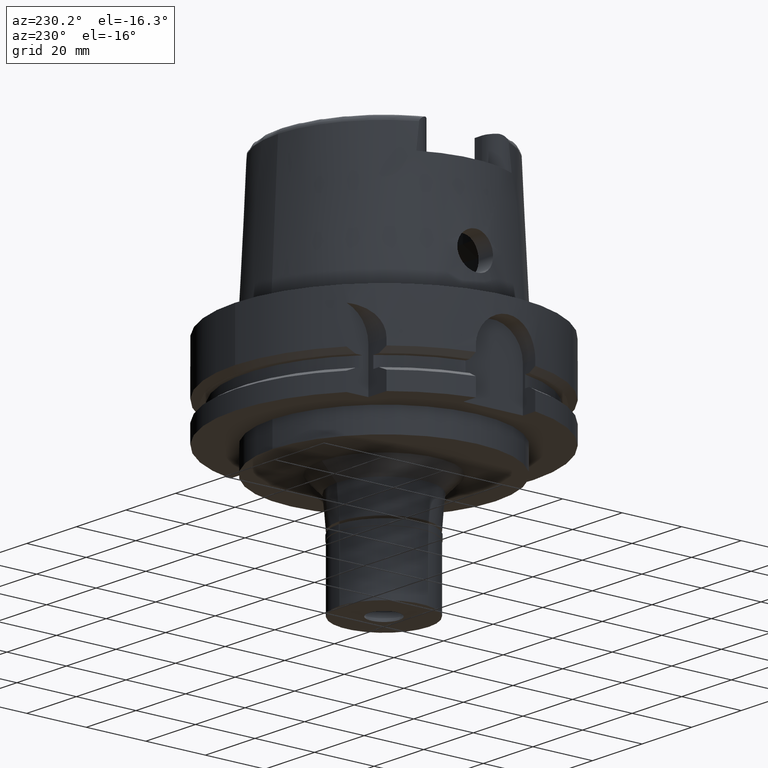
[diagram: clean part render]
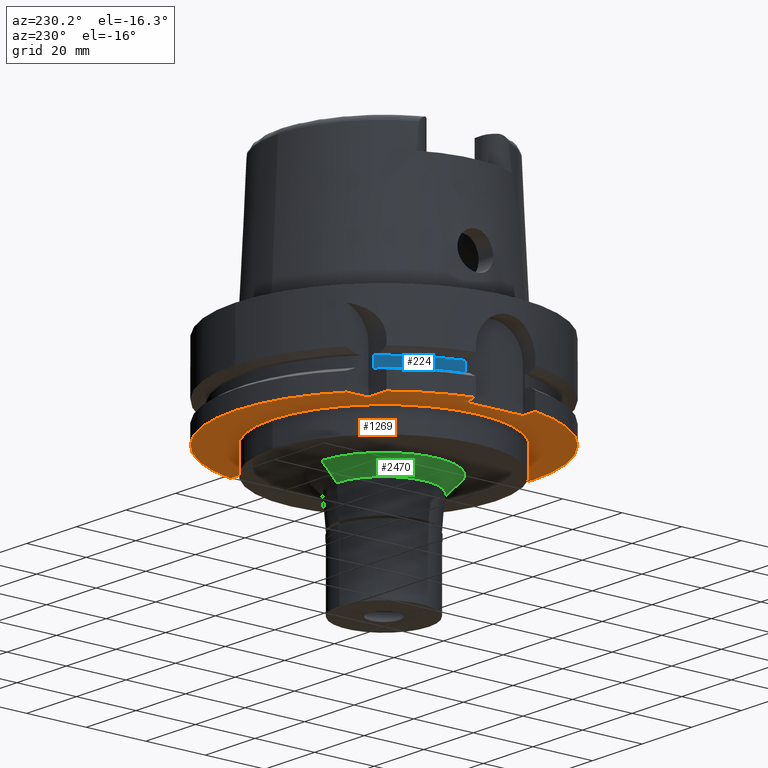
[diagram: same view with three faces highlighted in distinct colors, each labeled with its STEP entity id]
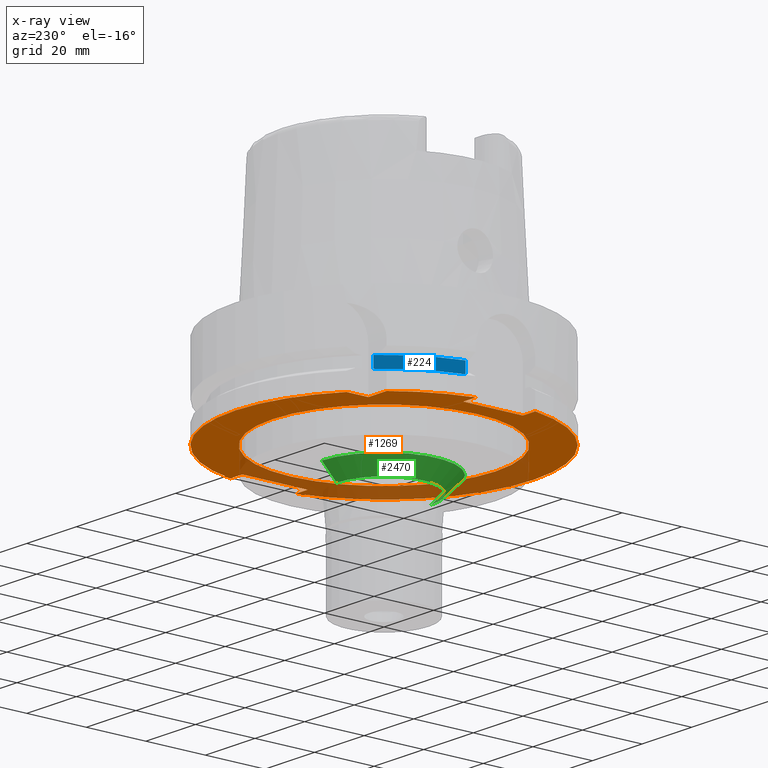
[diagram: x-ray of the same camera — body ghosted, the three highlighted faces saturated]
A machine part, auxiliary view with three faces highlighted in distinct colors.
The next image is the same camera in x-ray (body ghosted, the three faces saturated) — at least one of them is partly hidden behind the body in this view.
Their STEP definitions:

[orange] entity #1269 — the highlighted planar face has unit normal (0, 0, 1).
#46 = CARTESIAN_POINT ( 'NONE',  ( -31.50000000000000000, 31.50000000000000000, -29.00000000000000000 ) ) ;
#86 = DIRECTION ( 'NONE',  ( 0.0000000000000000000, 0.0000000000000000000, 1.000000000000000000 ) ) ;
#93 = VERTEX_POINT ( 'NONE', #2953 ) ;
#208 = EDGE_CURVE ( 'NONE', #449, #647, #3904, .T. ) ;
#222 = VECTOR ( 'NONE', #3586, 1000.000000000000000 ) ;
#276 = EDGE_CURVE ( 'NONE', #1277, #1149, #4397, .T. ) ;
#290 = ORIENTED_EDGE ( 'NONE', *, *, #3431, .F. ) ;
#403 = EDGE_CURVE ( 'NONE', #5310, #5000, #3169, .T. ) ;
#433 = DIRECTION ( 'NONE',  ( -0.7765951326141738997, 0.6299999999999789102, 0.0000000000000000000 ) ) ;
#435 = DIRECTION ( 'NONE',  ( 0.0000000000000000000, 0.0000000000000000000, -1.000000000000000000 ) ) ;
#449 = VERTEX_POINT ( 'NONE', #2807 ) ;
#465 = ORIENTED_EDGE ( 'NONE', *, *, #4031, .T. ) ;
#467 = ORIENTED_EDGE ( 'NONE', *, *, #276, .T. ) ;
#497 = CARTESIAN_POINT ( 'NONE',  ( -44.00000000000000000, 10.00000000000000000, -29.00000000000000000 ) ) ;
#506 = EDGE_CURVE ( 'NONE', #93, #1664, #3277, .T. ) ;
#515 = CARTESIAN_POINT ( 'NONE',  ( 0.0000000000000000000, 0.0000000000000000000, -29.00000000000000000 ) ) ;
#519 = LINE ( 'NONE', #4330, #1846 ) ;
#647 = VERTEX_POINT ( 'NONE', #5493 ) ;
#676 = EDGE_CURVE ( 'NONE', #1664, #93, #4097, .T. ) ;
#807 = VERTEX_POINT ( 'NONE', #2693 ) ;
#845 = DIRECTION ( 'NONE',  ( 0.0000000000000000000, 0.0000000000000000000, 1.000000000000000000 ) ) ;
#882 = EDGE_CURVE ( 'NONE', #449, #2480, #519, .T. ) ;
#966 = PLANE ( 'NONE',  #1858 ) ;
#1149 = VERTEX_POINT ( 'NONE', #2936 ) ;
#1247 = ORIENTED_EDGE ( 'NONE', *, *, #208, .T. ) ;
#1269 = ADVANCED_FACE ( 'NONE', ( #5262, #5290 ), #966, .F. ) ;
#1277 = VERTEX_POINT ( 'NONE', #4871 ) ;
#1326 = EDGE_LOOP ( 'NONE', ( #5205, #290, #2836, #465, #4086, #3780, #4821, #467, #4476, #4953, #1247 ) ) ;
#1468 = EDGE_CURVE ( 'NONE', #5310, #1277, #2871, .T. ) ;
#1525 = CARTESIAN_POINT ( 'NONE',  ( -44.00000000000000000, -10.00000000000000000, -29.00000000000000000 ) ) ;
#1575 = EDGE_LOOP ( 'NONE', ( #3874, #2384 ) ) ;
#1664 = VERTEX_POINT ( 'NONE', #3112 ) ;
#1678 = CARTESIAN_POINT ( 'NONE',  ( -44.00000000000000000, -10.00000000000000000, -29.00000000000000000 ) ) ;
#1716 = CARTESIAN_POINT ( 'NONE',  ( 44.00000000000000000, 11.00000000000000000, -29.00000000000000000 ) ) ;
#1756 = DIRECTION ( 'NONE',  ( 0.0000000000000000000, 0.0000000000000000000, 1.000000000000000000 ) ) ;
#1769 = LINE ( 'NONE', #1716, #3877 ) ;
#1846 = VECTOR ( 'NONE', #2237, 1000.000000000000000 ) ;
#1858 = AXIS2_PLACEMENT_3D ( 'NONE', #1944, #2687, #4351 ) ;
#1897 = LINE ( 'NONE', #3076, #222 ) ;
#1944 = CARTESIAN_POINT ( 'NONE',  ( 0.0000000000000000000, 0.0000000000000000000, -29.00000000000000000 ) ) ;
#2090 = EDGE_CURVE ( 'NONE', #3969, #647, #4293, .T. ) ;
#2152 = DIRECTION ( 'NONE',  ( 0.0000000000000000000, 1.000000000000000000, 0.0000000000000000000 ) ) ;
#2237 = DIRECTION ( 'NONE',  ( -1.000000000000000000, -4.798503851105999980E-14, 0.0000000000000000000 ) ) ;
#2291 = VECTOR ( 'NONE', #2672, 1000.000000000000000 ) ;
#2302 = VECTOR ( 'NONE', #3766, 1000.000000000000000 ) ;
#2384 = ORIENTED_EDGE ( 'NONE', *, *, #676, .F. ) ;
#2432 = CARTESIAN_POINT ( 'NONE',  ( 48.77499359303000404, 11.00000000000000000, -29.00000000000000000 ) ) ;
#2454 = DIRECTION ( 'NONE',  ( 1.000000000000000000, 1.711257052401000108E-14, 0.0000000000000000000 ) ) ;
#2480 = VERTEX_POINT ( 'NONE', #5352 ) ;
#2483 = LINE ( 'NONE', #4257, #3335 ) ;
#2579 = CARTESIAN_POINT ( 'NONE',  ( 0.0000000000000000000, 0.0000000000000000000, -29.00000000000000000 ) ) ;
#2672 = DIRECTION ( 'NONE',  ( 4.798503851105999980E-14, 1.000000000000000000, 0.0000000000000000000 ) ) ;
#2687 = DIRECTION ( 'NONE',  ( 0.0000000000000000000, 0.0000000000000000000, 1.000000000000000000 ) ) ;
#2693 = CARTESIAN_POINT ( 'NONE',  ( 44.00000000000000000, -11.00000000000000000, -29.00000000000000000 ) ) ;
#2763 = AXIS2_PLACEMENT_3D ( 'NONE', #515, #86, #5240 ) ;
#2807 = CARTESIAN_POINT ( 'NONE',  ( -31.50000000000000000, 31.50000000000000000, -29.00000000000000000 ) ) ;
#2836 = ORIENTED_EDGE ( 'NONE', *, *, #4789, .T. ) ;
#2846 = CIRCLE ( 'NONE', #2763, 50.00000000000000000 ) ;
#2871 = LINE ( 'NONE', #1525, #2302 ) ;
#2936 = CARTESIAN_POINT ( 'NONE',  ( -48.98979485565999425, 10.00000000000000000, -29.00000000000000000 ) ) ;
#2953 = CARTESIAN_POINT ( 'NONE',  ( 0.0000000000000000000, 37.50000000000000000, -29.00000000000000000 ) ) ;
#3060 = CARTESIAN_POINT ( 'NONE',  ( 44.00000000000000000, 11.00000000000000000, -29.00000000000000000 ) ) ;
#3076 = CARTESIAN_POINT ( 'NONE',  ( 44.00000000000000000, 11.00000000000000000, -29.00000000000000000 ) ) ;
#3103 = VECTOR ( 'NONE', #4910, 1000.000000000000000 ) ;
#3112 = CARTESIAN_POINT ( 'NONE',  ( 0.0000000000000000000, -37.50000000000000000, -29.00000000000000000 ) ) ;
#3169 = LINE ( 'NONE', #3196, #3103 ) ;
#3196 = CARTESIAN_POINT ( 'NONE',  ( -44.00000000000000000, -10.00000000000000000, -29.00000000000000000 ) ) ;
#3277 = CIRCLE ( 'NONE', #3470, 37.50000000000000000 ) ;
#3335 = VECTOR ( 'NONE', #2454, 1000.000000000000000 ) ;
#3422 = CARTESIAN_POINT ( 'NONE',  ( 0.0000000000000000000, 0.0000000000000000000, -29.00000000000000000 ) ) ;
#3431 = EDGE_CURVE ( 'NONE', #4823, #3969, #1897, .T. ) ;
#3470 = AXIS2_PLACEMENT_3D ( 'NONE', #2579, #435, #2152 ) ;
#3478 = EDGE_CURVE ( 'NONE', #5000, #5024, #2846, .T. ) ;
#3536 = DIRECTION ( 'NONE',  ( -1.000000000000000000, 4.627973610177000155E-14, 0.0000000000000000000 ) ) ;
#3586 = DIRECTION ( 'NONE',  ( 1.000000000000000000, -1.785659532940000023E-14, 0.0000000000000000000 ) ) ;
#3587 = DIRECTION ( 'NONE',  ( 0.0000000000000000000, 1.000000000000000000, 0.0000000000000000000 ) ) ;
#3766 = DIRECTION ( 'NONE',  ( 0.0000000000000000000, 1.000000000000000000, 0.0000000000000000000 ) ) ;
#3780 = ORIENTED_EDGE ( 'NONE', *, *, #403, .F. ) ;
#3813 = DIRECTION ( 'NONE',  ( 0.0000000000000000000, -1.000000000000000000, 0.0000000000000000000 ) ) ;
#3874 = ORIENTED_EDGE ( 'NONE', *, *, #506, .F. ) ;
#3877 = VECTOR ( 'NONE', #4772, 1000.000000000000000 ) ;
#3904 = LINE ( 'NONE', #46, #2291 ) ;
#3969 = VERTEX_POINT ( 'NONE', #2432 ) ;
#4018 = CARTESIAN_POINT ( 'NONE',  ( -48.98979485565999425, -10.00000000000000000, -29.00000000000000000 ) ) ;
#4031 = EDGE_CURVE ( 'NONE', #807, #5024, #2483, .T. ) ;
#4086 = ORIENTED_EDGE ( 'NONE', *, *, #3478, .F. ) ;
#4097 = CIRCLE ( 'NONE', #5010, 37.50000000000000000 ) ;
#4173 = AXIS2_PLACEMENT_3D ( 'NONE', #4726, #845, #433 ) ;
#4257 = CARTESIAN_POINT ( 'NONE',  ( 44.00000000000000000, -11.00000000000000000, -29.00000000000000000 ) ) ;
#4293 = CIRCLE ( 'NONE', #5373, 50.00000000000000000 ) ;
#4330 = CARTESIAN_POINT ( 'NONE',  ( -31.50000000000000000, 31.50000000000000000, -29.00000000000000000 ) ) ;
#4351 = DIRECTION ( 'NONE',  ( 1.000000000000000000, 0.0000000000000000000, 0.0000000000000000000 ) ) ;
#4397 = LINE ( 'NONE', #497, #4922 ) ;
#4458 = CIRCLE ( 'NONE', #4173, 50.00000000000000711 ) ;
#4476 = ORIENTED_EDGE ( 'NONE', *, *, #5412, .F. ) ;
#4590 = CARTESIAN_POINT ( 'NONE',  ( 48.77499359303000404, -11.00000000000000000, -29.00000000000000000 ) ) ;
#4645 = DIRECTION ( 'NONE',  ( 0.0000000000000000000, 0.0000000000000000000, -1.000000000000000000 ) ) ;
#4726 = CARTESIAN_POINT ( 'NONE',  ( 0.0000000000000000000, 0.0000000000000000000, -29.00000000000000000 ) ) ;
#4761 = CARTESIAN_POINT ( 'NONE',  ( 0.0000000000000000000, 0.0000000000000000000, -29.00000000000000000 ) ) ;
#4772 = DIRECTION ( 'NONE',  ( 0.0000000000000000000, -1.000000000000000000, 0.0000000000000000000 ) ) ;
#4789 = EDGE_CURVE ( 'NONE', #4823, #807, #1769, .T. ) ;
#4821 = ORIENTED_EDGE ( 'NONE', *, *, #1468, .T. ) ;
#4823 = VERTEX_POINT ( 'NONE', #3060 ) ;
#4871 = CARTESIAN_POINT ( 'NONE',  ( -44.00000000000000000, 10.00000000000000000, -29.00000000000000000 ) ) ;
#4910 = DIRECTION ( 'NONE',  ( -1.000000000000000000, -4.627973610177000155E-14, 0.0000000000000000000 ) ) ;
#4922 = VECTOR ( 'NONE', #3536, 1000.000000000000000 ) ;
#4953 = ORIENTED_EDGE ( 'NONE', *, *, #882, .F. ) ;
#5000 = VERTEX_POINT ( 'NONE', #4018 ) ;
#5010 = AXIS2_PLACEMENT_3D ( 'NONE', #3422, #4645, #3813 ) ;
#5024 = VERTEX_POINT ( 'NONE', #4590 ) ;
#5205 = ORIENTED_EDGE ( 'NONE', *, *, #2090, .F. ) ;
#5240 = DIRECTION ( 'NONE',  ( 0.0000000000000000000, -1.000000000000000000, 0.0000000000000000000 ) ) ;
#5262 = FACE_OUTER_BOUND ( 'NONE', #1326, .T. ) ;
#5290 = FACE_BOUND ( 'NONE', #1575, .T. ) ;
#5310 = VERTEX_POINT ( 'NONE', #1678 ) ;
#5352 = CARTESIAN_POINT ( 'NONE',  ( -38.82975663071000128, 31.50000000000000000, -29.00000000000000000 ) ) ;
#5373 = AXIS2_PLACEMENT_3D ( 'NONE', #4761, #1756, #3587 ) ;
#5412 = EDGE_CURVE ( 'NONE', #2480, #1149, #4458, .T. ) ;
#5493 = CARTESIAN_POINT ( 'NONE',  ( -31.50000000000000000, 38.82975663071000128, -29.00000000000000000 ) ) ;

[blue] entity #224 — the highlighted cylindrical surface (partial cylindrical patch) has radius 46 mm, axis along (0, 0, 1).
#13 = CARTESIAN_POINT ( 'NONE',  ( -33.52238058372000040, 31.50000000000000000, -21.87500000000000000 ) ) ;
#224 = ADVANCED_FACE ( 'NONE', ( #3936 ), #2699, .T. ) ;
#286 = DIRECTION ( 'NONE',  ( 0.0000000000000000000, 0.0000000000000000000, 1.000000000000000000 ) ) ;
#396 = DIRECTION ( 'NONE',  ( 0.0000000000000000000, 0.0000000000000000000, -1.000000000000000000 ) ) ;
#673 = VECTOR ( 'NONE', #286, 1000.000000000000000 ) ;
#1237 = ORIENTED_EDGE ( 'NONE', *, *, #3352, .T. ) ;
#1433 = DIRECTION ( 'NONE',  ( 0.0000000000000000000, 0.0000000000000000000, 1.000000000000000000 ) ) ;
#1463 = VERTEX_POINT ( 'NONE', #4999 ) ;
#1707 = CARTESIAN_POINT ( 'NONE',  ( -44.89988864128999779, 10.00000000000000000, -18.12500000000000000 ) ) ;
#1827 = CARTESIAN_POINT ( 'NONE',  ( 0.0000000000000000000, 0.0000000000000000000, -21.87500000000000000 ) ) ;
#2012 = ORIENTED_EDGE ( 'NONE', *, *, #2651, .F. ) ;
#2151 = DIRECTION ( 'NONE',  ( 0.0000000000000000000, 0.0000000000000000000, -1.000000000000000000 ) ) ;
#2615 = CARTESIAN_POINT ( 'NONE',  ( 0.0000000000000000000, 0.0000000000000000000, -74.21500000000000341 ) ) ;
#2648 = EDGE_LOOP ( 'NONE', ( #4628, #4177, #1237, #2012 ) ) ;
#2651 = EDGE_CURVE ( 'NONE', #2922, #5434, #2863, .T. ) ;
#2671 = AXIS2_PLACEMENT_3D ( 'NONE', #4260, #396, #5098 ) ;
#2699 = CYLINDRICAL_SURFACE ( 'NONE', #4552, 46.00000000000000000 ) ;
#2705 = DIRECTION ( 'NONE',  ( 0.0000000000000000000, 0.0000000000000000000, 1.000000000000000000 ) ) ;
#2711 = AXIS2_PLACEMENT_3D ( 'NONE', #1827, #2705, #4490 ) ;
#2863 = LINE ( 'NONE', #4133, #673 ) ;
#2922 = VERTEX_POINT ( 'NONE', #13 ) ;
#3017 = VECTOR ( 'NONE', #2151, 1000.000000000000000 ) ;
#3119 = DIRECTION ( 'NONE',  ( 0.0000000000000000000, 1.000000000000000000, 0.0000000000000000000 ) ) ;
#3143 = VERTEX_POINT ( 'NONE', #3591 ) ;
#3209 = CIRCLE ( 'NONE', #2671, 46.00000000000000000 ) ;
#3352 = EDGE_CURVE ( 'NONE', #3143, #5434, #3209, .T. ) ;
#3591 = CARTESIAN_POINT ( 'NONE',  ( -44.89988864128999779, 10.00000000000000000, -18.12500000000000000 ) ) ;
#3936 = FACE_OUTER_BOUND ( 'NONE', #2648, .T. ) ;
#3979 = CARTESIAN_POINT ( 'NONE',  ( -33.52238058372000040, 31.50000000000000000, -18.12500000000000000 ) ) ;
#4133 = CARTESIAN_POINT ( 'NONE',  ( -33.52238058372000040, 31.50000000000000000, -21.87500000000000000 ) ) ;
#4177 = ORIENTED_EDGE ( 'NONE', *, *, #5365, .F. ) ;
#4260 = CARTESIAN_POINT ( 'NONE',  ( 0.0000000000000000000, 0.0000000000000000000, -18.12500000000000000 ) ) ;
#4329 = CIRCLE ( 'NONE', #2711, 46.00000000000000000 ) ;
#4490 = DIRECTION ( 'NONE',  ( -0.7287474039939698667, 0.6847826086956719793, 0.0000000000000000000 ) ) ;
#4506 = EDGE_CURVE ( 'NONE', #2922, #1463, #4329, .T. ) ;
#4552 = AXIS2_PLACEMENT_3D ( 'NONE', #2615, #1433, #3119 ) ;
#4628 = ORIENTED_EDGE ( 'NONE', *, *, #4506, .T. ) ;
#4999 = CARTESIAN_POINT ( 'NONE',  ( -44.89988864128999779, 10.00000000000000000, -21.87500000000000000 ) ) ;
#5098 = DIRECTION ( 'NONE',  ( -0.9760845356801660655, 0.2173913043477924967, 0.0000000000000000000 ) ) ;
#5365 = EDGE_CURVE ( 'NONE', #3143, #1463, #5519, .T. ) ;
#5434 = VERTEX_POINT ( 'NONE', #3979 ) ;
#5519 = LINE ( 'NONE', #1707, #3017 ) ;

[green] entity #2470 — the highlighted conical surface has half-angle 45 deg.
#105 = LINE ( 'NONE', #1439, #993 ) ;
#314 = DIRECTION ( 'NONE',  ( 0.0000000000000000000, 0.0000000000000000000, -1.000000000000000000 ) ) ;
#702 = DIRECTION ( 'NONE',  ( 0.0000000000000000000, 0.7071067811864980568, -0.7071067811865969777 ) ) ;
#895 = ORIENTED_EDGE ( 'NONE', *, *, #5075, .F. ) ;
#965 = CONICAL_SURFACE ( 'NONE', #1232, 18.39238436796000187, 0.7853981633972997312 ) ;
#968 = CARTESIAN_POINT ( 'NONE',  ( 0.0000000000000000000, -20.89238436795999831, -37.00000000000000000 ) ) ;
#988 = CARTESIAN_POINT ( 'NONE',  ( 0.0000000000000000000, 0.0000000000000000000, -37.00000000000000000 ) ) ;
#993 = VECTOR ( 'NONE', #3970, 1000.000000000000000 ) ;
#1039 = CARTESIAN_POINT ( 'NONE',  ( 0.0000000000000000000, -15.89238436796000187, -42.00000000000000000 ) ) ;
#1198 = EDGE_CURVE ( 'NONE', #2328, #1992, #1220, .T. ) ;
#1211 = CIRCLE ( 'NONE', #2116, 15.89238436796000187 ) ;
#1220 = CIRCLE ( 'NONE', #1850, 20.89238436795999831 ) ;
#1232 = AXIS2_PLACEMENT_3D ( 'NONE', #3622, #2753, #4022 ) ;
#1439 = CARTESIAN_POINT ( 'NONE',  ( 0.0000000000000000000, 20.89238436795999831, -37.00000000000000000 ) ) ;
#1754 = DIRECTION ( 'NONE',  ( 0.0000000000000000000, -1.000000000000000000, 0.0000000000000000000 ) ) ;
#1850 = AXIS2_PLACEMENT_3D ( 'NONE', #988, #4845, #1754 ) ;
#1857 = CARTESIAN_POINT ( 'NONE',  ( 0.0000000000000000000, 15.89238436796000187, -42.00000000000000000 ) ) ;
#1887 = ORIENTED_EDGE ( 'NONE', *, *, #4054, .F. ) ;
#1992 = VERTEX_POINT ( 'NONE', #2938 ) ;
#2116 = AXIS2_PLACEMENT_3D ( 'NONE', #3247, #314, #5429 ) ;
#2308 = ORIENTED_EDGE ( 'NONE', *, *, #4482, .T. ) ;
#2328 = VERTEX_POINT ( 'NONE', #968 ) ;
#2425 = LINE ( 'NONE', #3745, #4614 ) ;
#2470 = ADVANCED_FACE ( 'NONE', ( #2675 ), #965, .T. ) ;
#2509 = ORIENTED_EDGE ( 'NONE', *, *, #1198, .T. ) ;
#2675 = FACE_OUTER_BOUND ( 'NONE', #3740, .T. ) ;
#2753 = DIRECTION ( 'NONE',  ( 0.0000000000000000000, 0.0000000000000000000, 1.000000000000000000 ) ) ;
#2938 = CARTESIAN_POINT ( 'NONE',  ( 0.0000000000000000000, 20.89238436795999831, -37.00000000000000000 ) ) ;
#3247 = CARTESIAN_POINT ( 'NONE',  ( 0.0000000000000000000, 0.0000000000000000000, -42.00000000000000000 ) ) ;
#3622 = CARTESIAN_POINT ( 'NONE',  ( 0.0000000000000000000, 0.0000000000000000000, -39.50000000000000000 ) ) ;
#3740 = EDGE_LOOP ( 'NONE', ( #895, #1887, #2509, #2308 ) ) ;
#3745 = CARTESIAN_POINT ( 'NONE',  ( 0.0000000000000000000, -20.89238436795999831, -37.00000000000000000 ) ) ;
#3970 = DIRECTION ( 'NONE',  ( 0.0000000000000000000, -0.7071067811864980568, -0.7071067811865969777 ) ) ;
#4022 = DIRECTION ( 'NONE',  ( 0.0000000000000000000, 1.000000000000000000, 0.0000000000000000000 ) ) ;
#4054 = EDGE_CURVE ( 'NONE', #2328, #4547, #2425, .T. ) ;
#4482 = EDGE_CURVE ( 'NONE', #1992, #4511, #105, .T. ) ;
#4511 = VERTEX_POINT ( 'NONE', #1857 ) ;
#4547 = VERTEX_POINT ( 'NONE', #1039 ) ;
#4614 = VECTOR ( 'NONE', #702, 1000.000000000000000 ) ;
#4845 = DIRECTION ( 'NONE',  ( 0.0000000000000000000, 0.0000000000000000000, -1.000000000000000000 ) ) ;
#5075 = EDGE_CURVE ( 'NONE', #4547, #4511, #1211, .T. ) ;
#5429 = DIRECTION ( 'NONE',  ( 0.0000000000000000000, -1.000000000000000000, 0.0000000000000000000 ) ) ;